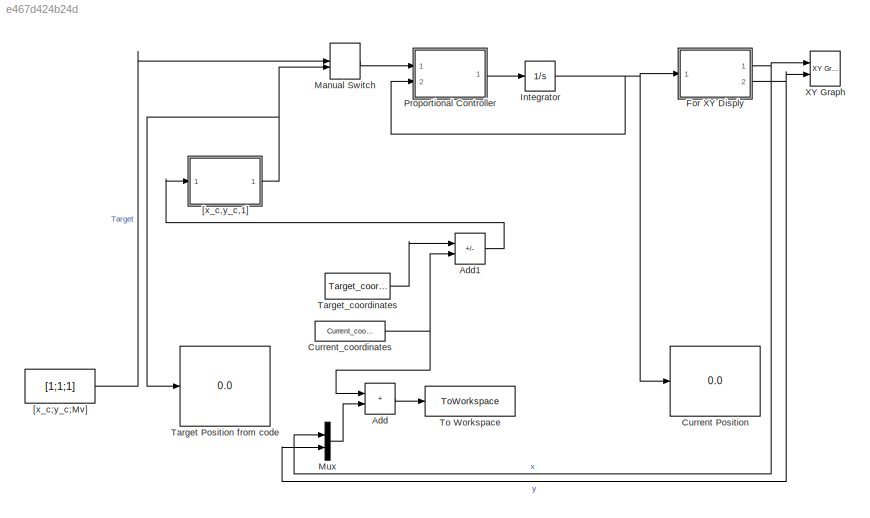
MODEL slx_e467d424b24d
KIND model
CONFIG AbsTol = auto
CONFIG EnableMultiTasking = off
CONFIG FixedStep = auto
CONFIG MaxStep = auto
CONFIG MinStep = auto
CONFIG RelTol = 1e-3
CONFIG SampleTimeConstraint = Unconstrained
CONFIG SolverName = VariableStepAuto
CONFIG StartTime = 0.0
CONFIG StopTime = 10.0
BLOCK [Sum] Add
  IconShape = rectangular
  Ports = [2, 1]
BLOCK [Sum] Add1
  IconShape = rectangular
  Inputs = +-
  Ports = [2, 1]
BLOCK [Display] Current Position
  Decimation = 1
  Ports = [1]
BLOCK [Constant] Current_coordinates
  Value = Current_coordinates
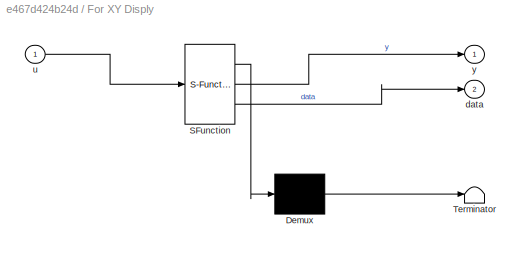
BLOCK [SubSystem] For XY Disply
  ErrorFcn = Stateflow.Translate.translate
  PermitHierarchicalResolution = ExplicitOnly
  Ports = [1, 2]
  RequestExecContextInheritance = off
  SFBlockType = MATLAB Function
  TreatAsAtomicUnit = on
BLOCK [Demux] For XY Disply/ Demux 
  Outputs = 1
  Ports = [1, 1]
BLOCK [S-Function] For XY Disply/ SFunction 
  EnableBusSupport = on
  FunctionName = sf_sfun
  PortCounts = [1 3]
  Ports = [1, 3]
  SFcnIsStateOwnerBlock = off
  SFunctionDeploymentMode = off
  Tag = Stateflow S-Function 3
BLOCK [Terminator] For XY Disply/ Terminator 
BLOCK [Outport] For XY Disply/data
  Port = 2
BLOCK [Inport] For XY Disply/u
BLOCK [Outport] For XY Disply/y
BLOCK [Integrator] Integrator
  InitialCondition = [0 0]
  Ports = [1, 1]
BLOCK [ManualSwitch] Manual Switch
  CurrentSetting = 0
BLOCK [Mux] Mux
  DisplayOption = bar
  Inputs = 2
  Ports = [2, 1]
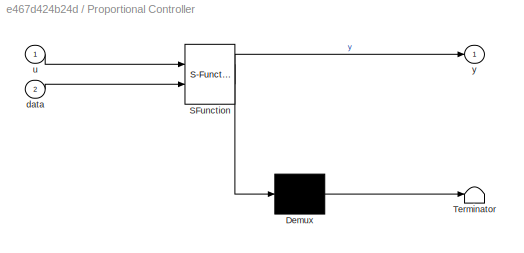
BLOCK [SubSystem] Proportional Controller
  ErrorFcn = Stateflow.Translate.translate
  PermitHierarchicalResolution = ExplicitOnly
  Ports = [2, 1]
  RequestExecContextInheritance = off
  SFBlockType = MATLAB Function
  TreatAsAtomicUnit = on
BLOCK [Demux] Proportional Controller/ Demux 
  Outputs = 1
  Ports = [1, 1]
BLOCK [S-Function] Proportional Controller/ SFunction 
  EnableBusSupport = on
  FunctionName = sf_sfun
  PortCounts = [2 2]
  Ports = [2, 2]
  SFcnIsStateOwnerBlock = off
  SFunctionDeploymentMode = off
  Tag = Stateflow S-Function 2
BLOCK [Terminator] Proportional Controller/ Terminator 
BLOCK [Inport] Proportional Controller/data
  Port = 2
BLOCK [Inport] Proportional Controller/u
BLOCK [Outport] Proportional Controller/y
BLOCK [Display] Target Position from code
  Decimation = 1
  Ports = [1]
BLOCK [Constant] Target_coordinates
  Value = Target_coordinates
BLOCK [ToWorkspace] To Workspace
  FixptAsFi = on
  MaxDataPoints = inf
  Ports = [1]
  SampleTime = -1
  SaveFormat = Timeseries
  VariableName = path_coordinates
BLOCK [Reference] XY Graph  REF=simulink/Sinks/XY Graph
  Ports = [2]
  SourceBlock = simulink/Sinks/XY Graph
  SourceProductBaseCode = SL
  SourceType = XY scope.
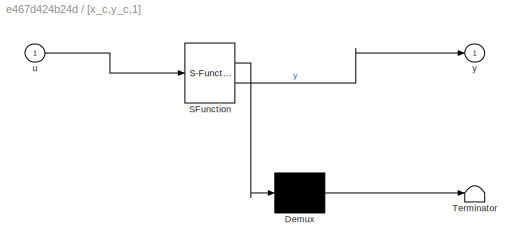
BLOCK [SubSystem] [x_c,y_c,1]
  ErrorFcn = Stateflow.Translate.translate
  PermitHierarchicalResolution = ExplicitOnly
  Ports = [1, 1]
  RequestExecContextInheritance = off
  SFBlockType = MATLAB Function
  TreatAsAtomicUnit = on
BLOCK [Demux] [x_c,y_c,1]/ Demux 
  Outputs = 1
  Ports = [1, 1]
BLOCK [S-Function] [x_c,y_c,1]/ SFunction 
  EnableBusSupport = on
  FunctionName = sf_sfun
  PortCounts = [1 2]
  Ports = [1, 2]
  SFcnIsStateOwnerBlock = off
  SFunctionDeploymentMode = off
  Tag = Stateflow S-Function 1
BLOCK [Terminator] [x_c,y_c,1]/ Terminator 
BLOCK [Inport] [x_c,y_c,1]/u
BLOCK [Outport] [x_c,y_c,1]/y
BLOCK [Constant] [x_c;y_c;Mv]
  Value = [1;1;1]
LINE Add1:1 -> [x_c,y_c,1]:1
LINE Add:1 -> To Workspace:1
NET Current_coordinates:1 -> Add1:2, Add:1
NET For XY Disply:1 -> Mux:1, XY Graph:1
NET For XY Disply:2 -> Mux:2, XY Graph:2
NET Integrator:1 -> Current Position:1, For XY Disply:1, Proportional Controller:2
LINE Manual Switch:1 -> Proportional Controller:1
LINE Mux:1 -> Add:2
LINE Proportional Controller:1 -> Integrator:1
LINE Target_coordinates:1 -> Add1:1
NET [x_c,y_c,1]:1 -> Manual Switch:2, Target Position from code:1
LINE [x_c;y_c;Mv]:1 -> Manual Switch:1
note: NET lines group one-source signal fan-out (src -> all destinations, sorted); 1:1 wires keep LINE
CHART Proportional Controller states=1 transitions=1
  STATE_LABEL 'eML_blk_kernel()'
  STATE_LABEL 'SCRIPT:\nfunction y = fcn(u, data)\n%u=(xc,yc) data=(x,y)\nk=6;\ny =k*[u(1)-data(1) u(2)-data(2)] ;\n'
CHART For XY Disply states=1 transitions=1
  STATE_LABEL 'eML_blk_kernel()'
  STATE_LABEL 'SCRIPT:\nfunction [y,data] = fcn(u)\ny=u(1);\ndata = u(2);\n'
CHART [x_c,y_c,1] states=1 transitions=1
  STATE_LABEL 'eML_blk_kernel()'
  STATE_LABEL 'SCRIPT:\nfunction y = fcn(u)\n\ny = [u(1),u(2),1];\n'
CHART  states=0 transitions=0
CHART  states=0 transitions=0
CHART  states=0 transitions=0
